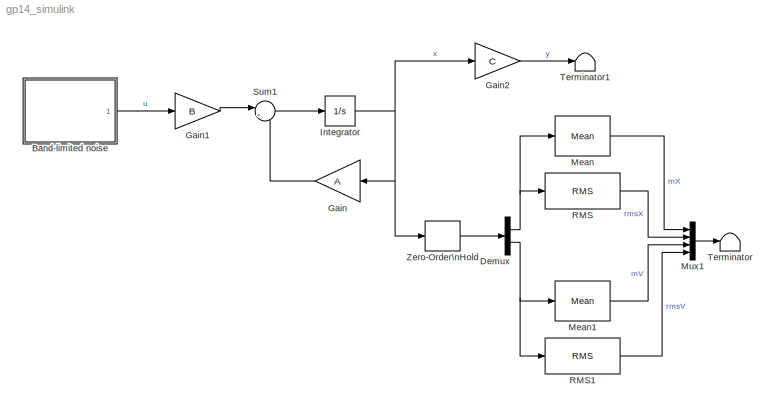
MODEL gp14_simulink
KIND model
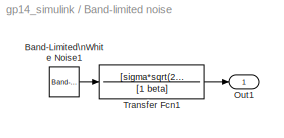
BLOCK [SubSystem] Band-limited noise
  FunctionWithSeparateData = off
  MaskHideContents = off
  MinAlgLoopOccurrences = off
  Opaque = off
  Ports = [0, 1]
  PropExecContextOutsideSubsystem = off
  RTWSystemCode = Auto
  RequestExecContextInheritance = off
  SID = 22
BLOCK [Reference] Band-limited noise/Band-Limited\nWhite Noise1  REF=simulink/Sources/Band-Limited\nWhite Noise
  Cov = [1]
  Ports = [0, 1]
  SID = 23
  SourceBlock = simulink/Sources/Band-Limited\nWhite Noise
  SourceType = Band-Limited White Noise.
  Ts = 0.15/beta
  VectorParams1D = on
  seed = seed
BLOCK [Outport] Band-limited noise/Out1
  IconDisplay = Port number
  SID = 25
BLOCK [TransferFcn] Band-limited noise/Transfer Fcn1
  Denominator = [1 beta]
  Numerator = [sigma*sqrt(2*beta)]
  SID = 24
BLOCK [Demux] Demux
  DisplayOption = bar
  Outputs = 2
  Ports = [1, 2]
  SID = 12
BLOCK [Gain] Gain
  Gain = A
  Multiplication = Matrix(K*u)
  OutDataTypeStr = Inherit: Inherit via internal rule
  ParamDataTypeStr = Inherit: Inherit via internal rule
  SID = 3
  SaturateOnIntegerOverflow = off
BLOCK [Gain] Gain1
  Gain = B
  Multiplication = Matrix(K*u)
  OutDataTypeStr = Inherit: Inherit via internal rule
  ParamDataTypeStr = Inherit: Inherit via internal rule
  SID = 4
  SaturateOnIntegerOverflow = off
BLOCK [Gain] Gain2
  Gain = C
  Multiplication = Matrix(K*u)
  OutDataTypeStr = Inherit: Inherit via internal rule
  ParamDataTypeStr = Inherit: Inherit via internal rule
  SID = 27
  SaturateOnIntegerOverflow = off
BLOCK [Integrator] Integrator
  Ports = [1, 1]
  SID = 5
BLOCK [Reference] Mean  REF=dspstat3/Mean
  InputProcessing = Columns as channels (frame based)
  LockScale = off
  Ports = [1, 1]
  SID = 15
  SourceBlock = dspstat3/Mean
  SourceType = Mean
  UserData = DataTag0
  UserDataPersistent = on
  accumDataTypeStr = Inherit: Same as input
  accumFracLength = 30
  accumLastDataTypeStr = Inherit: Same as input
  accumMode = Same as input
  accumWordLength = 32
  additionalParams = off
  allowOverrides = on
  dimension = 1
  directionMode = Each column
  outputDataTypeStr = Inherit: Same as accumulator
  outputFracLength = 30
  outputLastDataTypeStr = Inherit: Same as accumulator
  outputMax = []
  outputMin = []
  outputMode = Same as accumulator
  outputWordLength = 32
  overflowMode = off
  reset_popup = None
  roiEnable = off
  roiFlag = off
  roiOutput = Individual statistics for each ROI
  roiPortion = Entire ROI
  roiType = Rectangles
  roundingMode = Floor
  run = on
  treatSBRowAsCol = on
BLOCK [Reference] Mean1  REF=dspstat3/Mean
  InputProcessing = Columns as channels (frame based)
  LockScale = off
  Ports = [1, 1]
  SID = 18
  SourceBlock = dspstat3/Mean
  SourceType = Mean
  UserData = DataTag1
  UserDataPersistent = on
  accumDataTypeStr = Inherit: Same as input
  accumFracLength = 30
  accumLastDataTypeStr = Inherit: Same as input
  accumMode = Same as input
  accumWordLength = 32
  additionalParams = off
  allowOverrides = on
  dimension = 1
  directionMode = Each column
  outputDataTypeStr = Inherit: Same as accumulator
  outputFracLength = 30
  outputLastDataTypeStr = Inherit: Same as accumulator
  outputMax = []
  outputMin = []
  outputMode = Same as accumulator
  outputWordLength = 32
  overflowMode = off
  reset_popup = None
  roiEnable = off
  roiFlag = off
  roiOutput = Individual statistics for each ROI
  roiPortion = Entire ROI
  roiType = Rectangles
  roundingMode = Floor
  run = on
  treatSBRowAsCol = on
BLOCK [Mux] Mux1
  DisplayOption = bar
  Ports = [4, 1]
  SID = 20
BLOCK [Reference] RMS  REF=dspstat3/RMS
  InputProcessing = Columns as channels (frame based)
  Ports = [1, 1]
  SID = 17
  SourceBlock = dspstat3/RMS
  SourceType = RMS
  UserData = DataTag2
  UserDataPersistent = on
  dimension = 1
  directionMode = Each column
  reset_popup = None
  run = on
  treatSBRowAsCol = on
BLOCK [Reference] RMS1  REF=dspstat3/RMS
  InputProcessing = Columns as channels (frame based)
  Ports = [1, 1]
  SID = 19
  SourceBlock = dspstat3/RMS
  SourceType = RMS
  UserData = DataTag3
  UserDataPersistent = on
  dimension = 1
  directionMode = Each column
  reset_popup = None
  run = on
  treatSBRowAsCol = on
BLOCK [Sum] Sum1
  IconShape = round
  InputSameDT = off
  Inputs = |++
  OutDataTypeStr = Inherit: Inherit via internal rule
  Ports = [2, 1]
  SID = 7
  SaturateOnIntegerOverflow = off
BLOCK [Terminator] Terminator
  SID = 26
BLOCK [Terminator] Terminator1
  SID = 28
BLOCK [ZeroOrderHold] Zero-Order\nHold
  SID = 11
LINE Band-limited noise/Band-Limited\nWhite Noise1:1 -> Band-limited noise/Transfer Fcn1:1
LINE Band-limited noise/Transfer Fcn1:1 -> Band-limited noise/Out1:1
LINE Band-limited noise:1 -> Gain1:1
NET Demux:1 -> Mean:1, RMS:1
NET Demux:2 -> Mean1:1, RMS1:1
LINE Gain1:1 -> Sum1:1
LINE Gain2:1 -> Terminator1:1
LINE Gain:1 -> Sum1:2
NET Integrator:1 -> Gain2:1, Gain:1, Zero-Order\nHold:1
LINE Mean1:1 -> Mux1:3
LINE Mean:1 -> Mux1:1
LINE Mux1:1 -> Terminator:1
LINE RMS1:1 -> Mux1:4
LINE RMS:1 -> Mux1:2
LINE Sum1:1 -> Integrator:1
LINE Zero-Order\nHold:1 -> Demux:1
note: NET lines group one-source signal fan-out (src -> all destinations, sorted); 1:1 wires keep LINE
